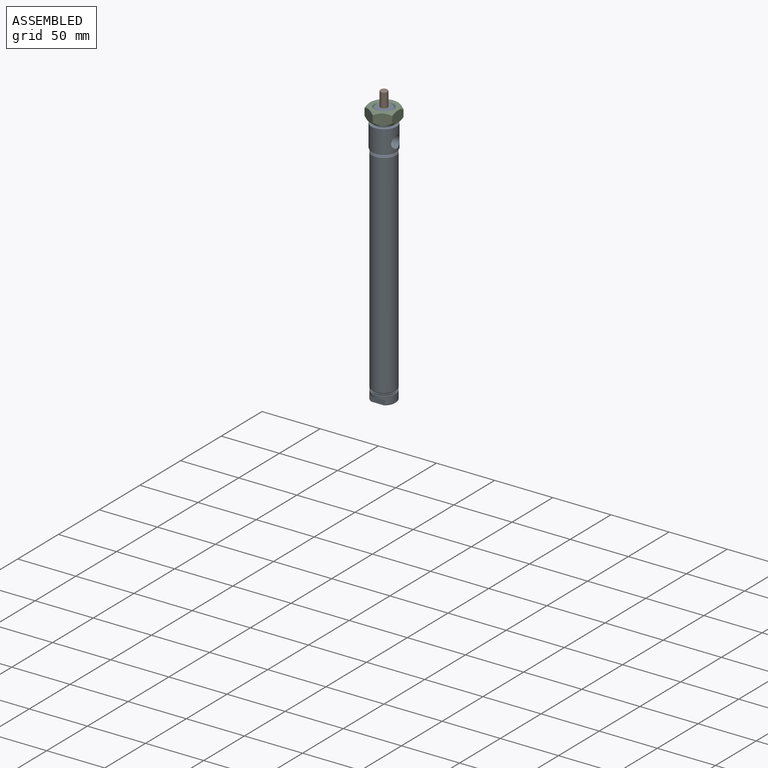
[diagram: assembled view]
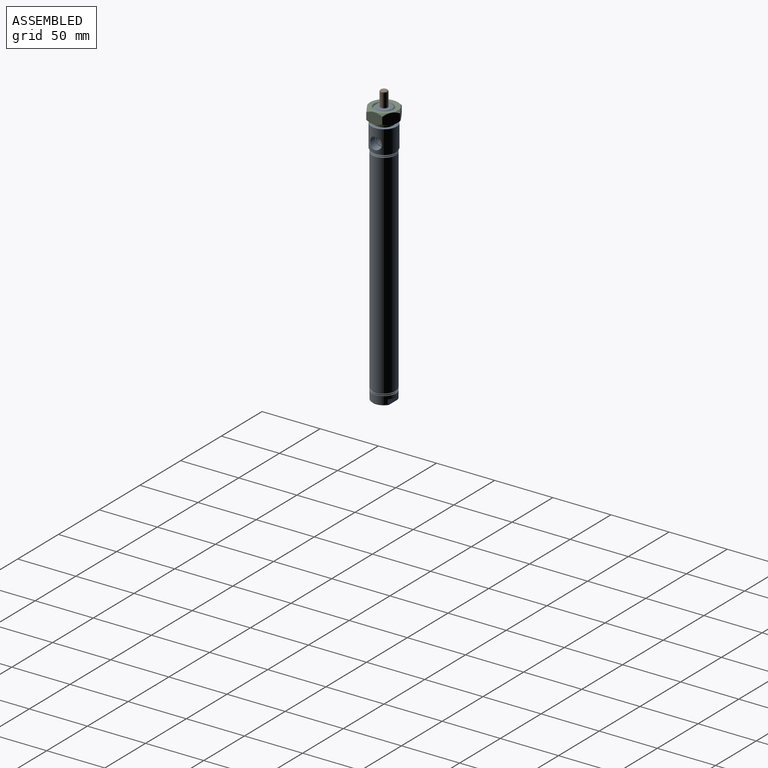
[diagram: assembled view, second angle]
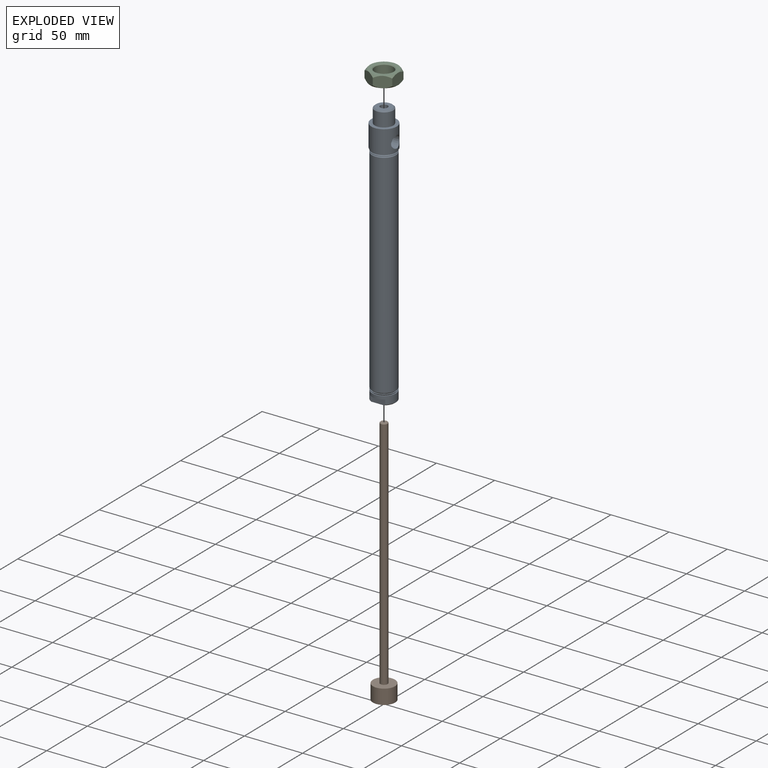
[diagram: exploded view]
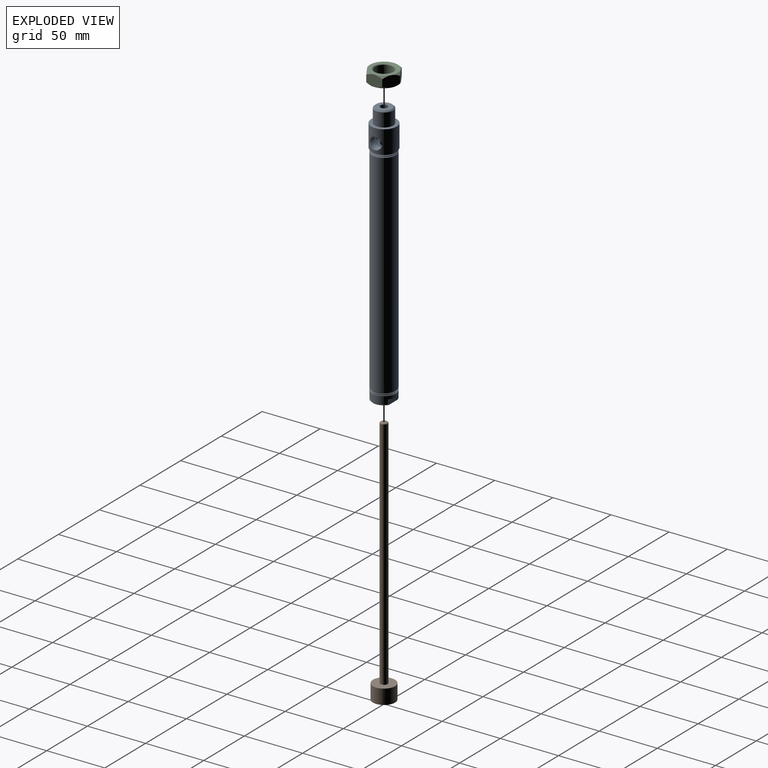
[diagram: exploded view, second angle]
ASSEMBLY  parts=3 mates=2
PART A: 39 faces, bbox 227.9x21.9x21.9 mm
  f0: cone r=10.29mm half-angle=45deg, axis (-1,0,0), area 77.8mm2, adj f11,f34
  f1: cylinder r=10.29mm len=20.57mm, axis (1,0,0), area 24.6mm2, adj f2,f34
  f2: cone r=10.29mm half-angle=45deg, axis (-1,0,0), area 77.8mm2, adj f1,f33
  f3: cone r=5.14mm half-angle=1.7deg, axis (1,0,0), area 219.4mm2, adj f20,f32
  f4: cylinder r=4.22mm len=18.1mm, axis (1,0,0), area 479.4mm2, adj f27,f32
  f5: cone r=4.22mm half-angle=59deg, axis (0,0,1), area 0mm2, adj f9
  f6: cylinder r=4.22mm len=8.43mm, axis (0,0,1), area 79.9mm2, adj f9,f29,f30,f31
  f7: cone r=5.14mm half-angle=1.7deg, axis (0,0,1), area 199.2mm2, adj f14,f29
  f8: cone r=6.89mm half-angle=45deg, axis (1,0,0), area 66.8mm2, adj f15,f23
  f9: cylinder r=3.17mm len=37.72mm, axis (1,0,0), area 667.4mm2, adj f5,f6,f23,f28,f30,f31
  f10: cylinder r=9.53mm len=165.1mm, axis (1,0,0), area 9880.8mm2, adj f27,f28
  f11: cylinder r=10.29mm len=182.88mm, axis (-1,0,0), area 11820.5mm2, adj f0,f12
  f12: cone r=9.4mm half-angle=45deg, axis (1,0,0), area 77.8mm2, adj f11,f26
  f13: cone r=9.4mm half-angle=45deg, axis (1,0,0), area 77.8mm2, adj f17,f25
  f14: cylinder r=10.92mm len=21.84mm, axis (-1,0,0), area 1222.3mm2, adj f7,f22,f24
  f15: cylinder r=7.91mm len=15.81mm, axis (-1,0,0), area 580.4mm2, adj f8,f22
  f16: cylinder r=10.29mm len=20.57mm, axis (-1,0,0), area 82.1mm2, adj f24,f25
  f17: cylinder r=10.29mm len=20.57mm, axis (-1,0,0), area 24.6mm2, adj f13,f26
  f18: cone r=10.29mm half-angle=45deg, axis (-1,0,0), area 19.7mm2, adj f19,f20,f35,f37
  f19: cylinder r=10.29mm len=20.57mm, axis (1,0,0), area 326.4mm2, adj f18,f21,f33,f35,f36,f37,f38
  f20: plane 19.05x15.75mm, normal (1,0,0), area 177.9mm2, adj f3,f18,f21,f35,f37
  f21: cone r=10.29mm half-angle=45deg, axis (-1,0,0), area 19.7mm2, adj f19,f20,f35,f37
  f22: plane 21.84x21.84mm, normal (-1,0,0), area 178.4mm2, adj f14,f15
  f23: plane 13.78x13.78mm, normal (-1,0,0), area 117.5mm2, adj f8,f9
  f24: plane 21.84x21.84mm, normal (1,0,0), area 42.3mm2, adj f14,f16
  f25: plane 20.57x20.57mm, normal (1,0,0), area 55mm2, adj f13,f16
  f26: plane 20.57x20.57mm, normal (1,0,0), area 55mm2, adj f12,f17
  f27: plane 19.05x19.05mm, normal (-1,0,0), area 229.2mm2, adj f4,f10
  f28: plane 19.05x19.05mm, normal (1,0,0), area 253.4mm2, adj f9,f10
  f29: plane 9.87x9.87mm, normal (0,0,1), area 20.7mm2, adj f6,f7
  f30: cone r=4.22mm half-angle=59deg, axis (0,0,1), area 6.4mm2, adj f6,f9
  f31: cone r=4.22mm half-angle=59deg, axis (0,0,1), area 6.4mm2, adj f6,f9
  f32: plane 9.87x9.87mm, normal (1,0,0), area 20.7mm2, adj f3,f4
  f33: plane 20.57x20.57mm, normal (-1,0,0), area 55mm2, adj f2,f19
  f34: plane 20.57x20.57mm, normal (-1,0,0), area 55mm2, adj f0,f1
  f35: plane 13.3x4.89mm, normal (0,1,0), area 63mm2, adj f18,f19,f20,f21,f36
  f36: plane 13.24x2.41mm, normal (1,0,0), area 21.9mm2, adj f19,f35
  f37: plane 13.3x4.89mm, normal (0,-1,0), area 63mm2, adj f18,f19,f20,f21,f38
  f38: plane 13.24x2.41mm, normal (1,0,0), area 21.9mm2, adj f19,f37
PART B: 6 faces, bbox 215.5x19.1x19.1 mm
  f0: cone r=2.67mm half-angle=45deg, axis (-1,0,0), area 13.2mm2, adj f2,f3
  f1: cylinder r=9.53mm len=19.05mm, axis (-1,0,0), area 760.1mm2, adj f4,f5
  f2: cylinder r=3.17mm len=202.31mm, axis (-1,0,0), area 4035.9mm2, adj f0,f4
  f3: plane 5.33x5.33mm, normal (1,0,0), area 22.3mm2, adj f0
  f4: plane 19.05x19.05mm, normal (1,0,0), area 253.4mm2, adj f1,f2
  f5: plane 19.05x19.05mm, normal (-1,0,0), area 285mm2, adj f1
PART C: 23 faces, bbox 27.6x27.6x9.7 mm
  f0: cone r=8.57mm half-angle=45deg, axis (0,0,-1), area 46.6mm2, adj f2,f22
  f1: cone r=7.94mm half-angle=45deg, axis (0,0,1), area 46.6mm2, adj f2,f15
  f2: cylinder r=7.94mm len=15.88mm, axis (0,0,1), area 418mm2, adj f0,f1
  f3: plane 11.94x9.65mm, normal (-0.5,0.87,0), area 115.6mm2, adj f4,f8,f13,f14,f20,f21
  f4: plane 13.79x9.65mm, normal (-1,0,0), area 115.6mm2, adj f3,f5,f9,f14,f16,f21
  f5: plane 11.94x9.65mm, normal (-0.5,-0.87,0), area 115.6mm2, adj f4,f6,f9,f10,f16,f17
  f6: plane 11.94x9.65mm, normal (0.5,-0.87,0), area 115.6mm2, adj f5,f7,f10,f11,f17,f18
  f7: plane 13.79x9.65mm, normal (1,0,0), area 115.6mm2, adj f6,f8,f11,f12,f18,f19
  f8: plane 11.94x9.65mm, normal (0.5,0.87,0), area 115.6mm2, adj f3,f7,f12,f13,f19,f20
  f9: cone r=11.94mm half-angle=45deg, axis (0,0,-1), area 10.8mm2, adj f4,f5,f15
  f10: cone r=11.94mm half-angle=45deg, axis (0,0,-1), area 10.8mm2, adj f5,f6,f15
  f11: cone r=11.94mm half-angle=45deg, axis (0,0,-1), area 10.8mm2, adj f6,f7,f15
  f12: cone r=11.94mm half-angle=45deg, axis (0,0,-1), area 10.8mm2, adj f7,f8,f15
  f13: cone r=11.94mm half-angle=45deg, axis (0,0,-1), area 10.8mm2, adj f3,f8,f15
  f14: cone r=11.94mm half-angle=45deg, axis (0,0,-1), area 10.8mm2, adj f3,f4,f15
  f15: plane 23.88x23.88mm, normal (0,0,1), area 216.9mm2, adj f1,f9,f10,f11,f12,f13,f14
  f16: cone r=13.78mm half-angle=45deg, axis (0,0,1), area 10.8mm2, adj f4,f5,f22
  f17: cone r=13.78mm half-angle=45deg, axis (0,0,1), area 10.8mm2, adj f5,f6,f22
  f18: cone r=13.78mm half-angle=45deg, axis (0,0,1), area 10.8mm2, adj f6,f7,f22
  f19: cone r=13.78mm half-angle=45deg, axis (0,0,1), area 10.8mm2, adj f7,f8,f22
  f20: cone r=13.78mm half-angle=45deg, axis (0,0,1), area 10.8mm2, adj f3,f8,f22
  f21: cone r=13.78mm half-angle=45deg, axis (0,0,1), area 10.8mm2, adj f3,f4,f22
  f22: plane 23.88x23.88mm, normal (0,0,-1), area 216.9mm2, adj f0,f16,f17,f18,f19,f20,f21
PLACE A rot(axis=(0,1,0),90deg) t=(0,0,0)mm fixed
PLACE B rot(axis=(-0.58,-0.58,-0.58),120deg) t=(0,0,-137.88)mm
PLACE C t=(0,0,-4.7)mm
MATE slider B.f0 <-> A.f0  axis (0,0,1) through (0,0,12.7)mm
MATE fastened C.f0 <-> A.f0  axis (0,0,-1) through (0,0,-9.52)mm
